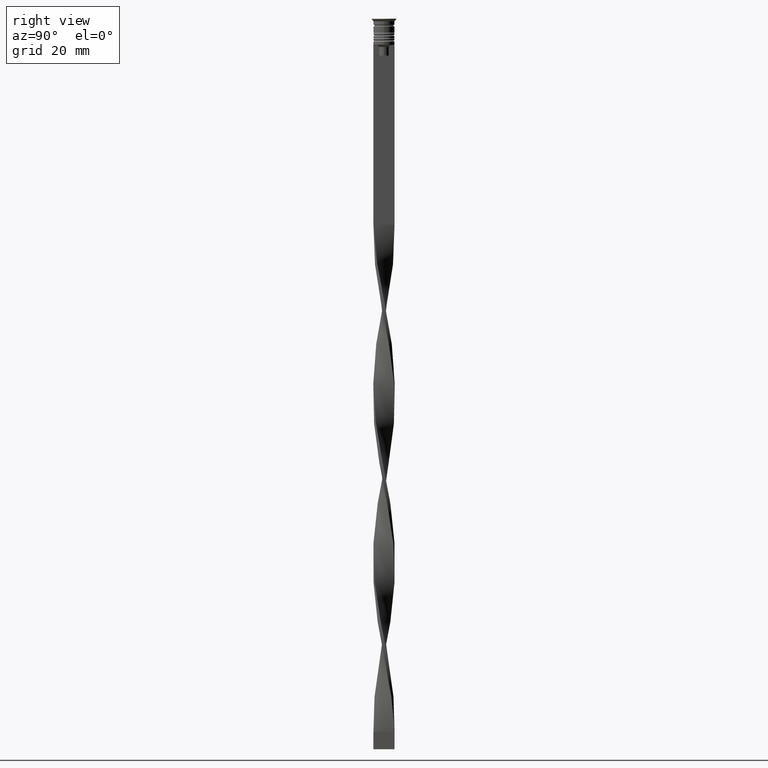
[diagram: clean part render]
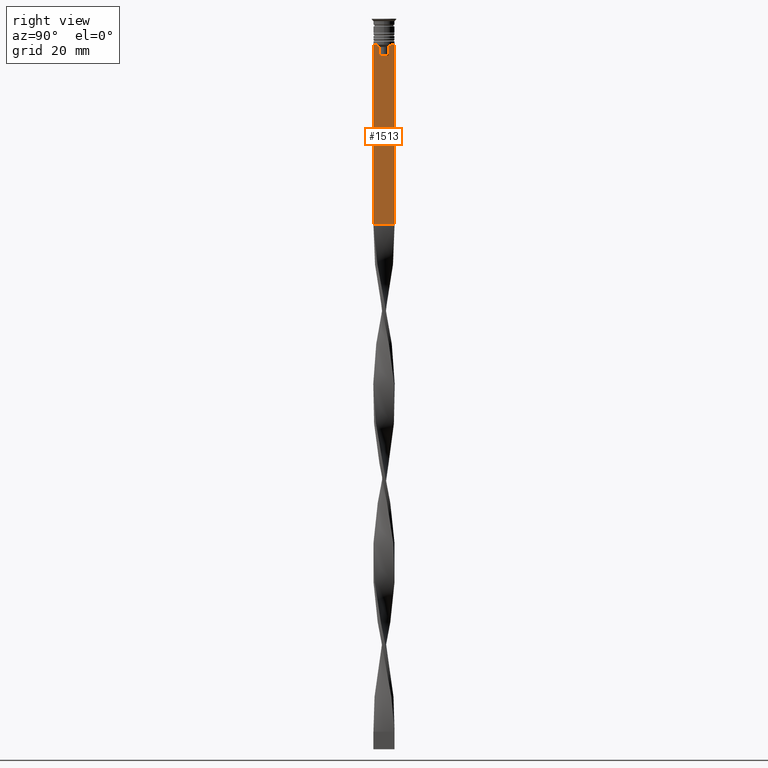
[diagram: same view with one face highlighted and labeled with its STEP entity id]
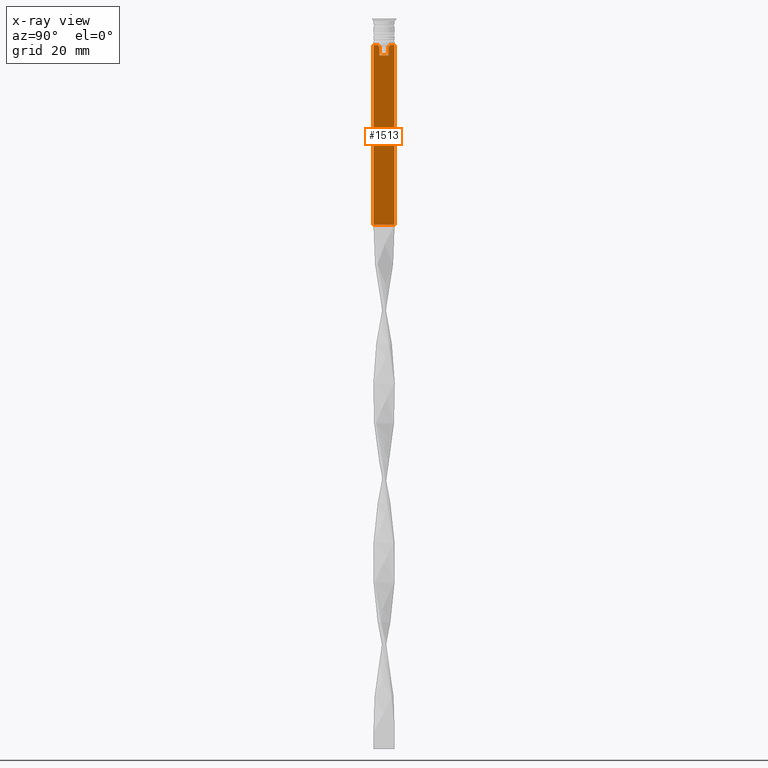
[diagram: x-ray of the same camera — body ghosted, the highlighted face saturated]
A machine part, right view. The second image highlights one B-rep face of the part: STEP entity #1513.
The next image is the same camera in x-ray: the body ghosted, the highlighted face saturated — about 0% of this face is hidden behind the body in this view.
In plain terms, the highlighted planar face has unit normal (-1, 0, 0).
Its self-contained STEP definition (entity closure, byte-faithful):
#19 = LINE ( 'NONE', #3455, #856 ) ;
#25 = ORIENTED_EDGE ( 'NONE', *, *, #1450, .T. ) ;
#102 = DIRECTION ( 'NONE',  ( 0.000000000000000000, 0.000000000000000000, -1.000000000000000000 ) ) ;
#216 = VERTEX_POINT ( 'NONE', #2446 ) ;
#284 = DIRECTION ( 'NONE',  ( 0.000000000000000000, 1.000000000000000000, 0.000000000000000000 ) ) ;
#333 = PLANE ( 'NONE',  #1583 ) ;
#366 = ORIENTED_EDGE ( 'NONE', *, *, #1331, .T. ) ;
#417 = VERTEX_POINT ( 'NONE', #839 ) ;
#419 = EDGE_CURVE ( 'NONE', #3186, #3306, #2820, .T. ) ;
#437 = EDGE_CURVE ( 'NONE', #3261, #1867, #2709, .T. ) ;
#483 = CARTESIAN_POINT ( 'NONE',  ( 0.4999999999999998890, -3.000000000000000000, -58.50000000000000000 ) ) ;
#496 = ORIENTED_EDGE ( 'NONE', *, *, #1951, .T. ) ;
#527 = EDGE_CURVE ( 'NONE', #689, #2009, #1592, .T. ) ;
#529 = CARTESIAN_POINT ( 'NONE',  ( 0.4999999999999998890, 1.833030277982335754, -7.500000000000000000 ) ) ;
#616 = VECTOR ( 'NONE', #2157, 1000.000000000000000 ) ;
#651 = VERTEX_POINT ( 'NONE', #3156 ) ;
#674 = ORIENTED_EDGE ( 'NONE', *, *, #2456, .T. ) ;
#689 = VERTEX_POINT ( 'NONE', #3379 ) ;
#721 = CARTESIAN_POINT ( 'NONE',  ( 0.4999999999999998890, 2.856571371417139904, -7.500000000000000000 ) ) ;
#727 = VECTOR ( 'NONE', #3641, 1000.000000000000000 ) ;
#728 = VECTOR ( 'NONE', #2715, 1000.000000000000000 ) ;
#754 = CARTESIAN_POINT ( 'NONE',  ( 0.4999999999999998890, -3.000000000000000000, -7.500000000000000000 ) ) ;
#771 = LINE ( 'NONE', #483, #1755 ) ;
#823 = VERTEX_POINT ( 'NONE', #3233 ) ;
#839 = CARTESIAN_POINT ( 'NONE',  ( 0.4999999999999998890, -3.000000000000000000, -7.500000000000000000 ) ) ;
#849 = LINE ( 'NONE', #2852, #727 ) ;
#856 = VECTOR ( 'NONE', #2927, 1000.000000000000000 ) ;
#895 = ORIENTED_EDGE ( 'NONE', *, *, #1716, .T. ) ;
#902 = CARTESIAN_POINT ( 'NONE',  ( 0.4999999999999998890, -3.000000000000000000, -7.500000000000000000 ) ) ;
#909 = DIRECTION ( 'NONE',  ( -0.000000000000000000, -0.000000000000000000, 1.000000000000000000 ) ) ;
#922 = ORIENTED_EDGE ( 'NONE', *, *, #527, .F. ) ;
#1110 = CARTESIAN_POINT ( 'NONE',  ( 0.4999999999999998890, 3.000000000000000000, -58.50000000000000000 ) ) ;
#1112 = EDGE_CURVE ( 'NONE', #651, #3261, #2082, .T. ) ;
#1128 = LINE ( 'NONE', #2203, #2241 ) ;
#1183 = ORIENTED_EDGE ( 'NONE', *, *, #1112, .T. ) ;
#1199 = VERTEX_POINT ( 'NONE', #1650 ) ;
#1207 = DIRECTION ( 'NONE',  ( -1.000000000000000000, 0.000000000000000000, 0.000000000000000000 ) ) ;
#1312 = ORIENTED_EDGE ( 'NONE', *, *, #2161, .T. ) ;
#1331 = EDGE_CURVE ( 'NONE', #216, #823, #849, .T. ) ;
#1374 = EDGE_CURVE ( 'NONE', #1199, #2009, #771, .T. ) ;
#1408 = CARTESIAN_POINT ( 'NONE',  ( 0.4999999999999998890, 1.659046061654642967, -7.667851756010362507 ) ) ;
#1450 = EDGE_CURVE ( 'NONE', #689, #3186, #19, .T. ) ;
#1513 = ADVANCED_FACE ( 'NONE', ( #2357 ), #333, .F. ) ;
#1564 = CARTESIAN_POINT ( 'NONE',  ( 0.4999999999999998890, -3.000000000000000000, -1.417237469701779329 ) ) ;
#1583 = AXIS2_PLACEMENT_3D ( 'NONE', #3168, #1207, #2625 ) ;
#1592 = LINE ( 'NONE', #3290, #1872 ) ;
#1650 = CARTESIAN_POINT ( 'NONE',  ( 0.4999999999999998890, -3.000000000000000000, -58.50000000000000000 ) ) ;
#1706 = CARTESIAN_POINT ( 'NONE',  ( 0.4999999999999998890, -3.000000000000000000, -7.500000000000000000 ) ) ;
#1716 = EDGE_CURVE ( 'NONE', #417, #1199, #1862, .T. ) ;
#1755 = VECTOR ( 'NONE', #284, 1000.000000000000000 ) ;
#1844 = VECTOR ( 'NONE', #909, 1000.000000000000000 ) ;
#1854 = CARTESIAN_POINT ( 'NONE',  ( 0.4999999999999998890, -1.307669683062199439, -8.000000000000000000 ) ) ;
#1862 = LINE ( 'NONE', #1564, #728 ) ;
#1867 = VERTEX_POINT ( 'NONE', #2806 ) ;
#1872 = VECTOR ( 'NONE', #102, 1000.000000000000000 ) ;
#1951 = EDGE_CURVE ( 'NONE', #823, #2221, #1128, .T. ) ;
#2006 = LINE ( 'NONE', #2552, #1844 ) ;
#2009 = VERTEX_POINT ( 'NONE', #1110 ) ;
#2053 = VECTOR ( 'NONE', #2860, 1000.000000000000000 ) ;
#2082 = B_SPLINE_CURVE_WITH_KNOTS ( 'NONE', 3,
 ( #1854, #2498, #3629, #2196 ),
 .UNSPECIFIED., .F., .F.,
 ( 4, 4 ),
 ( 0.007225659348748082224, 0.007950554640278054835 ),
 .UNSPECIFIED. ) ;
#2157 = DIRECTION ( 'NONE',  ( 0.000000000000000000, -1.000000000000000000, 0.000000000000000000 ) ) ;
#2161 = EDGE_CURVE ( 'NONE', #1867, #417, #2881, .T. ) ;
#2196 = CARTESIAN_POINT ( 'NONE',  ( 0.4999999999999998890, -1.833030277982335754, -7.500000000000000000 ) ) ;
#2203 = CARTESIAN_POINT ( 'NONE',  ( 0.4999999999999998890, 1.399999999999997691, -10.49999999999999822 ) ) ;
#2221 = VERTEX_POINT ( 'NONE', #2315 ) ;
#2241 = VECTOR ( 'NONE', #3671, 1000.000000000000000 ) ;
#2315 = CARTESIAN_POINT ( 'NONE',  ( 0.4999999999999998890, -1.307669683062199439, -10.49999999999999822 ) ) ;
#2335 = EDGE_CURVE ( 'NONE', #3306, #216, #3206, .T. ) ;
#2357 = FACE_OUTER_BOUND ( 'NONE', #3282, .T. ) ;
#2446 = CARTESIAN_POINT ( 'NONE',  ( 0.4999999999999998890, 1.307669683062199439, -8.000000000000000000 ) ) ;
#2456 = EDGE_CURVE ( 'NONE', #2221, #651, #2006, .T. ) ;
#2493 = VECTOR ( 'NONE', #3447, 1000.000000000000000 ) ;
#2498 = CARTESIAN_POINT ( 'NONE',  ( 0.4999999999999998890, -1.484307477388859153, -7.835011508197190722 ) ) ;
#2552 = CARTESIAN_POINT ( 'NONE',  ( 0.4999999999999998890, -1.307669683062199439, 0.000000000000000000 ) ) ;
#2558 = CARTESIAN_POINT ( 'NONE',  ( 0.4999999999999998890, 1.484355510416485835, -7.834966642958598015 ) ) ;
#2625 = DIRECTION ( 'NONE',  ( 0.000000000000000000, 0.000000000000000000, 1.000000000000000000 ) ) ;
#2635 = CARTESIAN_POINT ( 'NONE',  ( 0.4999999999999998890, -1.833030277982335754, -7.500000000000000000 ) ) ;
#2672 = ORIENTED_EDGE ( 'NONE', *, *, #2335, .T. ) ;
#2709 = LINE ( 'NONE', #754, #616 ) ;
#2715 = DIRECTION ( 'NONE',  ( 0.000000000000000000, 0.000000000000000000, -1.000000000000000000 ) ) ;
#2806 = CARTESIAN_POINT ( 'NONE',  ( 0.4999999999999998890, -2.856571371417139904, -7.500000000000000000 ) ) ;
#2820 = LINE ( 'NONE', #1706, #2053 ) ;
#2852 = CARTESIAN_POINT ( 'NONE',  ( 0.4999999999999998890, 1.307669683062199439, 0.000000000000000000 ) ) ;
#2860 = DIRECTION ( 'NONE',  ( 0.000000000000000000, -1.000000000000000000, 0.000000000000000000 ) ) ;
#2881 = LINE ( 'NONE', #902, #2493 ) ;
#2893 = ORIENTED_EDGE ( 'NONE', *, *, #419, .T. ) ;
#2927 = DIRECTION ( 'NONE',  ( 0.000000000000000000, -1.000000000000000000, 0.000000000000000000 ) ) ;
#2989 = ORIENTED_EDGE ( 'NONE', *, *, #437, .T. ) ;
#3019 = ORIENTED_EDGE ( 'NONE', *, *, #1374, .T. ) ;
#3156 = CARTESIAN_POINT ( 'NONE',  ( 0.4999999999999998890, -1.307669683062199439, -8.000000000000000000 ) ) ;
#3168 = CARTESIAN_POINT ( 'NONE',  ( 0.4999999999999998890, -3.000000000000000000, -1.417237469701779329 ) ) ;
#3186 = VERTEX_POINT ( 'NONE', #721 ) ;
#3206 = B_SPLINE_CURVE_WITH_KNOTS ( 'NONE', 3,
 ( #529, #1408, #2558, #3705 ),
 .UNSPECIFIED., .F., .F.,
 ( 4, 4 ),
 ( 0.003278537493109848298, 0.004003794023484941178 ),
 .UNSPECIFIED. ) ;
#3233 = CARTESIAN_POINT ( 'NONE',  ( 0.4999999999999998890, 1.307669683062199439, -10.49999999999999822 ) ) ;
#3261 = VERTEX_POINT ( 'NONE', #2635 ) ;
#3282 = EDGE_LOOP ( 'NONE', ( #2893, #2672, #366, #496, #674, #1183, #2989, #1312, #895, #3019, #922, #25 ) ) ;
#3290 = CARTESIAN_POINT ( 'NONE',  ( 0.4999999999999998890, 3.000000000000000000, -1.417237469701779329 ) ) ;
#3306 = VERTEX_POINT ( 'NONE', #3522 ) ;
#3379 = CARTESIAN_POINT ( 'NONE',  ( 0.4999999999999998890, 3.000000000000000000, -7.500000000000000000 ) ) ;
#3447 = DIRECTION ( 'NONE',  ( 0.000000000000000000, -1.000000000000000000, 0.000000000000000000 ) ) ;
#3455 = CARTESIAN_POINT ( 'NONE',  ( 0.4999999999999998890, -3.000000000000000000, -7.500000000000000000 ) ) ;
#3522 = CARTESIAN_POINT ( 'NONE',  ( 0.4999999999999998890, 1.833030277982335754, -7.500000000000000000 ) ) ;
#3629 = CARTESIAN_POINT ( 'NONE',  ( 0.4999999999999998890, -1.659011726860414093, -7.667884880598472286 ) ) ;
#3641 = DIRECTION ( 'NONE',  ( 0.000000000000000000, 0.000000000000000000, -1.000000000000000000 ) ) ;
#3671 = DIRECTION ( 'NONE',  ( 0.000000000000000000, -1.000000000000000000, 0.000000000000000000 ) ) ;
#3705 = CARTESIAN_POINT ( 'NONE',  ( 0.4999999999999998890, 1.307669683062199439, -8.000000000000000000 ) ) ;